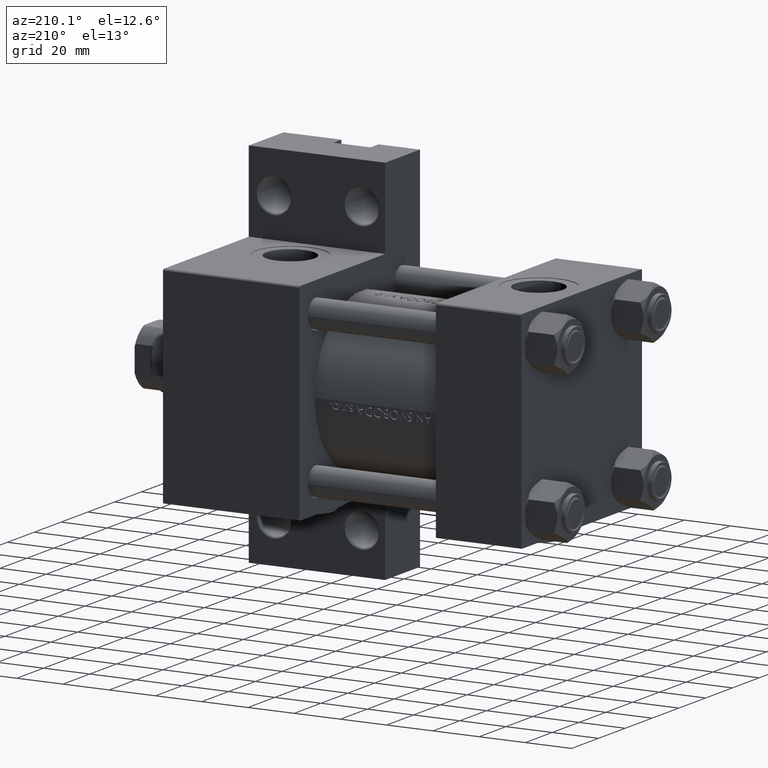
[diagram: clean part render]
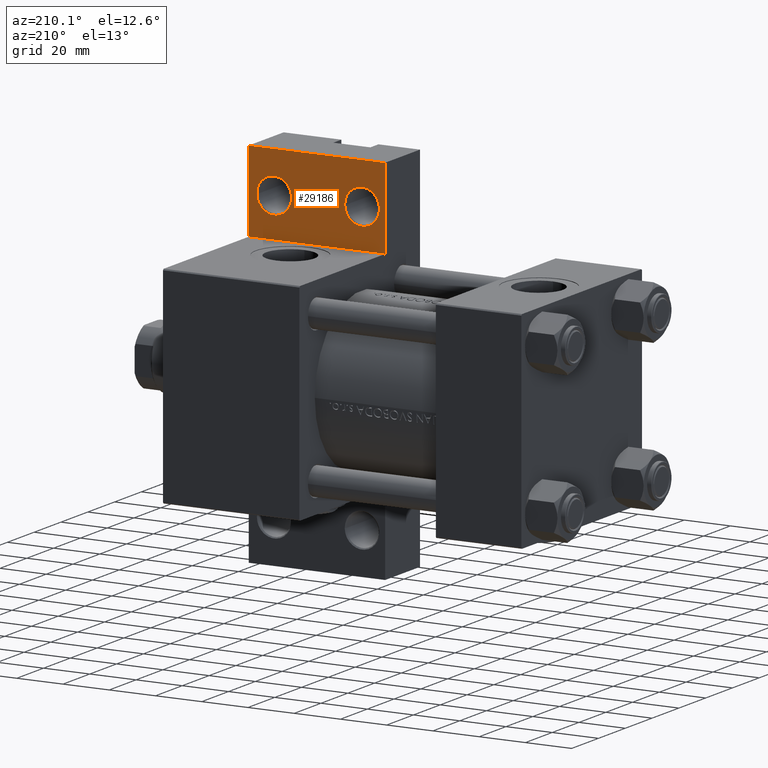
[diagram: same view with one face highlighted and labeled with its STEP entity id]
A machine part, auxiliary view. The second image highlights one B-rep face of the part: STEP entity #29186.
In plain terms, the highlighted planar face has unit normal (0, -1, 0).
Its self-contained STEP definition (entity closure, byte-faithful):
#1257 = EDGE_CURVE ( 'NONE', #7266, #20657, #42090, .T. ) ;
#1401 = AXIS2_PLACEMENT_3D ( 'NONE', #34219, #30442, #19112 ) ;
#2463 = VECTOR ( 'NONE', #28969, 1000.000000000000000 ) ;
#5082 = CARTESIAN_POINT ( 'NONE',  ( 155.0000000000000000, -44.99999999999999289, -18.99999999999997513 ) ) ;
#5462 = CARTESIAN_POINT ( 'NONE',  ( 0.000000000000000000, 0.000000000000000000, -19.00000000000000000 ) ) ;
#5955 = CARTESIAN_POINT ( 'NONE',  ( 95.99999999999998579, -79.99999999999998579, -19.00000000000000000 ) ) ;
#6106 = EDGE_CURVE ( 'NONE', #42060, #18211, #43939, .T. ) ;
#6537 = ORIENTED_EDGE ( 'NONE', *, *, #35338, .F. ) ;
#6854 = VERTEX_POINT ( 'NONE', #5082 ) ;
#7160 = EDGE_LOOP ( 'NONE', ( #39496, #10849 ) ) ;
#7266 = VERTEX_POINT ( 'NONE', #47997 ) ;
#8455 = CARTESIAN_POINT ( 'NONE',  ( 136.5004999999998461, -62.00000000000000000, -19.00000000000000000 ) ) ;
#10849 = ORIENTED_EDGE ( 'NONE', *, *, #24064, .T. ) ;
#13010 = CARTESIAN_POINT ( 'NONE',  ( 96.00000000000000000, -45.00000000000000000, -19.00000000000000000 ) ) ;
#13592 = CIRCLE ( 'NONE', #42505, 7.499500000000103306 ) ;
#14500 = EDGE_CURVE ( 'NONE', #18211, #42060, #41923, .T. ) ;
#15917 = DIRECTION ( 'NONE',  ( 3.965082230804131699E-16, 1.000000000000000000, 0.000000000000000000 ) ) ;
#16418 = ORIENTED_EDGE ( 'NONE', *, *, #35838, .F. ) ;
#16883 = DIRECTION ( 'NONE',  ( -1.000000000000000000, 0.000000000000000000, 0.000000000000000000 ) ) ;
#16911 = CARTESIAN_POINT ( 'NONE',  ( 154.9999999999999716, -80.00000000000002842, -19.00000000000000000 ) ) ;
#17187 = DIRECTION ( 'NONE',  ( 0.000000000000000000, 0.000000000000000000, -1.000000000000000000 ) ) ;
#17331 = DIRECTION ( 'NONE',  ( 0.000000000000000000, 0.000000000000000000, -1.000000000000000000 ) ) ;
#17375 = CARTESIAN_POINT ( 'NONE',  ( 105.9999999999999574, -62.00000000000001421, -19.00000000000000000 ) ) ;
#18211 = VERTEX_POINT ( 'NONE', #23995 ) ;
#19112 = DIRECTION ( 'NONE',  ( -1.000000000000000000, 0.000000000000000000, 0.000000000000000000 ) ) ;
#19549 = ORIENTED_EDGE ( 'NONE', *, *, #14500, .T. ) ;
#20395 = AXIS2_PLACEMENT_3D ( 'NONE', #40214, #17331, #20595 ) ;
#20595 = DIRECTION ( 'NONE',  ( -1.000000000000000000, 0.000000000000000000, 0.000000000000000000 ) ) ;
#20657 = VERTEX_POINT ( 'NONE', #8455 ) ;
#20791 = DIRECTION ( 'NONE',  ( -1.000000000000000000, 0.000000000000000000, -0.000000000000000000 ) ) ;
#20947 = DIRECTION ( 'NONE',  ( -1.000000000000000000, 0.000000000000000000, 0.000000000000000000 ) ) ;
#21522 = LINE ( 'NONE', #5955, #23516 ) ;
#22647 = AXIS2_PLACEMENT_3D ( 'NONE', #17375, #44271, #16883 ) ;
#23295 = AXIS2_PLACEMENT_3D ( 'NONE', #5462, #47211, #20791 ) ;
#23516 = VECTOR ( 'NONE', #36870, 1000.000000000000000 ) ;
#23847 = FACE_BOUND ( 'NONE', #7160, .T. ) ;
#23889 = LINE ( 'NONE', #47017, #38850 ) ;
#23955 = VERTEX_POINT ( 'NONE', #34149 ) ;
#23995 = CARTESIAN_POINT ( 'NONE',  ( 113.4994999999999976, -62.00000000000001421, -19.00000000000000000 ) ) ;
#24064 = EDGE_CURVE ( 'NONE', #20657, #7266, #13592, .T. ) ;
#24578 = FACE_BOUND ( 'NONE', #41825, .T. ) ;
#25824 = ORIENTED_EDGE ( 'NONE', *, *, #40488, .F. ) ;
#26789 = CARTESIAN_POINT ( 'NONE',  ( 154.9999999999999716, -80.00000000000002842, -19.00000000000000000 ) ) ;
#28969 = DIRECTION ( 'NONE',  ( 7.930164461608253537E-16, -1.000000000000000000, -0.000000000000000000 ) ) ;
#29186 = ADVANCED_FACE ( 'NONE', ( #23847, #24578, #46971 ), #39922, .F. ) ;
#30442 = DIRECTION ( 'NONE',  ( 0.000000000000000000, 0.000000000000000000, -1.000000000000000000 ) ) ;
#30978 = EDGE_LOOP ( 'NONE', ( #41037, #25824, #16418, #6537 ) ) ;
#31275 = LINE ( 'NONE', #46359, #37131 ) ;
#31753 = EDGE_CURVE ( 'NONE', #6854, #33933, #36022, .T. ) ;
#32041 = CARTESIAN_POINT ( 'NONE',  ( 143.9999999999999716, -62.00000000000000000, -19.00000000000000000 ) ) ;
#33933 = VERTEX_POINT ( 'NONE', #26789 ) ;
#34149 = CARTESIAN_POINT ( 'NONE',  ( 95.99999999999998579, -79.99999999999998579, -19.00000000000000000 ) ) ;
#34219 = CARTESIAN_POINT ( 'NONE',  ( 105.9999999999999574, -62.00000000000001421, -19.00000000000000000 ) ) ;
#35215 = DIRECTION ( 'NONE',  ( 1.000000000000000000, 0.000000000000000000, 0.000000000000000000 ) ) ;
#35305 = VERTEX_POINT ( 'NONE', #13010 ) ;
#35338 = EDGE_CURVE ( 'NONE', #33933, #23955, #21522, .T. ) ;
#35838 = EDGE_CURVE ( 'NONE', #23955, #35305, #31275, .T. ) ;
#36022 = LINE ( 'NONE', #16911, #2463 ) ;
#36577 = CARTESIAN_POINT ( 'NONE',  ( 98.50049999999990291, -62.00000000000001421, -19.00000000000000000 ) ) ;
#36870 = DIRECTION ( 'NONE',  ( -1.000000000000000000, 7.056502275159895171E-16, -0.000000000000000000 ) ) ;
#37131 = VECTOR ( 'NONE', #15917, 1000.000000000000000 ) ;
#38490 = ORIENTED_EDGE ( 'NONE', *, *, #6106, .T. ) ;
#38850 = VECTOR ( 'NONE', #35215, 1000.000000000000000 ) ;
#39496 = ORIENTED_EDGE ( 'NONE', *, *, #1257, .T. ) ;
#39922 = PLANE ( 'NONE',  #23295 ) ;
#40214 = CARTESIAN_POINT ( 'NONE',  ( 143.9999999999999716, -62.00000000000000000, -19.00000000000000000 ) ) ;
#40488 = EDGE_CURVE ( 'NONE', #35305, #6854, #23889, .T. ) ;
#41037 = ORIENTED_EDGE ( 'NONE', *, *, #31753, .F. ) ;
#41825 = EDGE_LOOP ( 'NONE', ( #19549, #38490 ) ) ;
#41923 = CIRCLE ( 'NONE', #22647, 7.499500000000047351 ) ;
#42060 = VERTEX_POINT ( 'NONE', #36577 ) ;
#42090 = CIRCLE ( 'NONE', #20395, 7.499500000000103306 ) ;
#42505 = AXIS2_PLACEMENT_3D ( 'NONE', #32041, #17187, #20947 ) ;
#43939 = CIRCLE ( 'NONE', #1401, 7.499500000000047351 ) ;
#44271 = DIRECTION ( 'NONE',  ( 0.000000000000000000, 0.000000000000000000, -1.000000000000000000 ) ) ;
#46359 = CARTESIAN_POINT ( 'NONE',  ( 95.99999999999998579, -79.99999999999998579, -19.00000000000000000 ) ) ;
#46971 = FACE_OUTER_BOUND ( 'NONE', #30978, .T. ) ;
#47017 = CARTESIAN_POINT ( 'NONE',  ( 96.00000000000000000, -45.00000000000000000, -19.00000000000000000 ) ) ;
#47211 = DIRECTION ( 'NONE',  ( 0.000000000000000000, 0.000000000000000000, -1.000000000000000000 ) ) ;
#47997 = CARTESIAN_POINT ( 'NONE',  ( 151.4995000000000687, -62.00000000000000000, -19.00000000000000000 ) ) ;